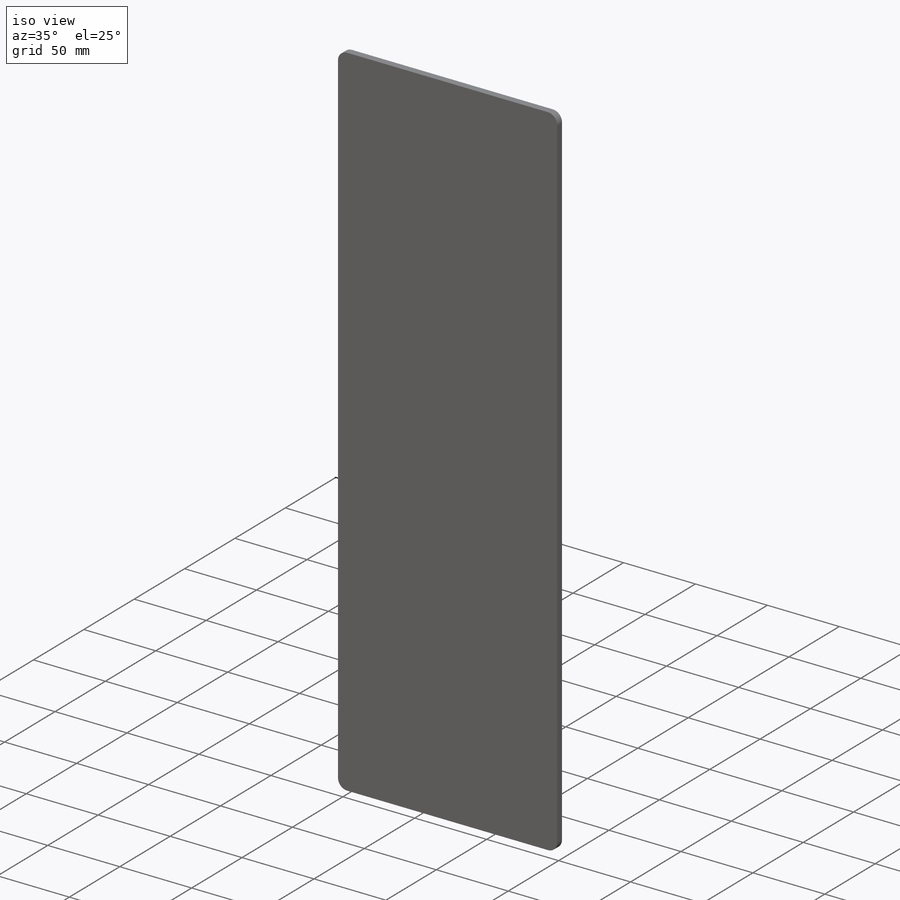
[diagram: iso view]
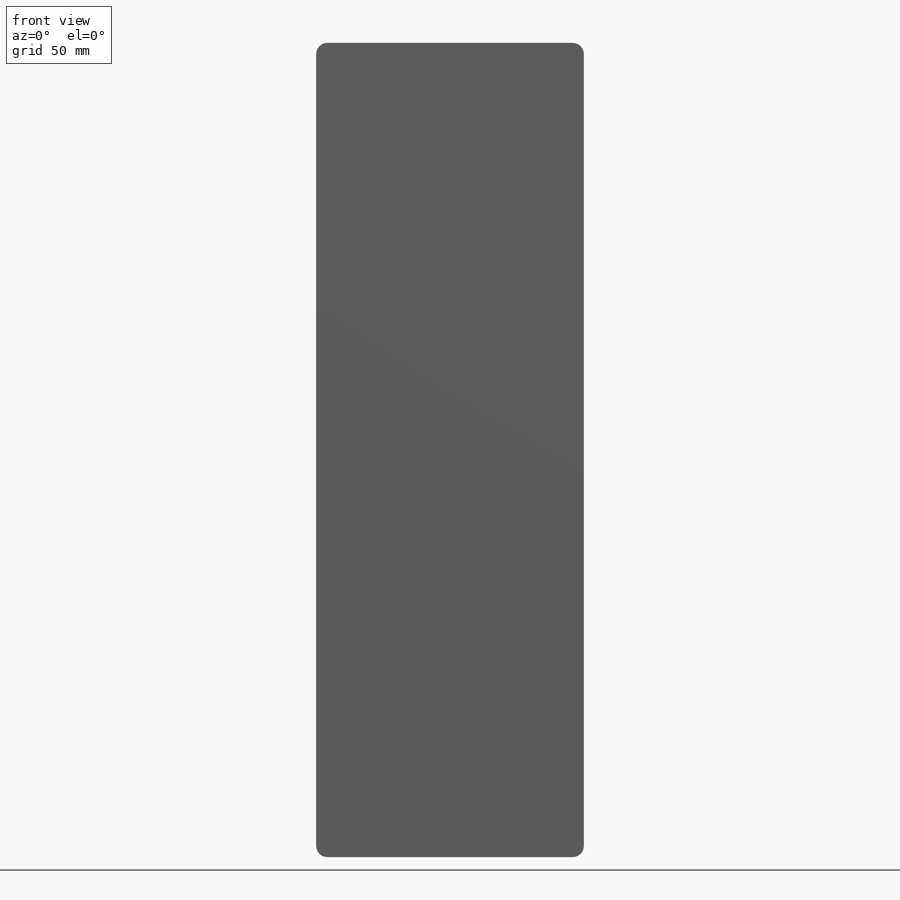
[diagram: front view]
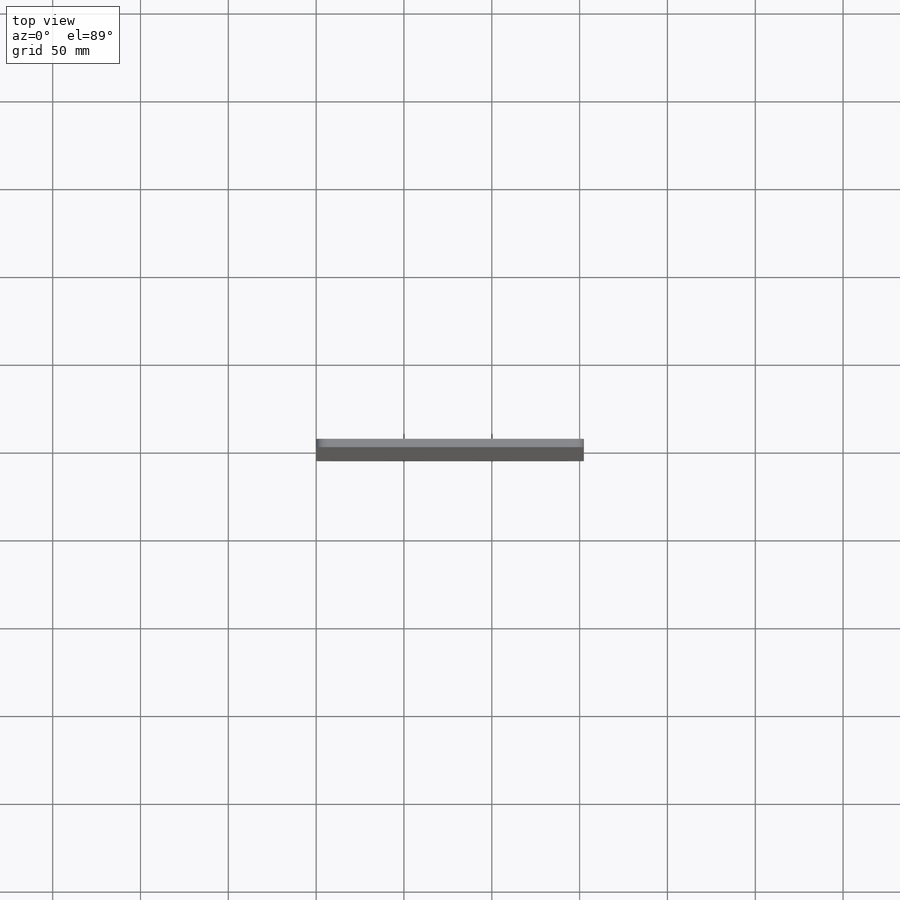
[diagram: top view]
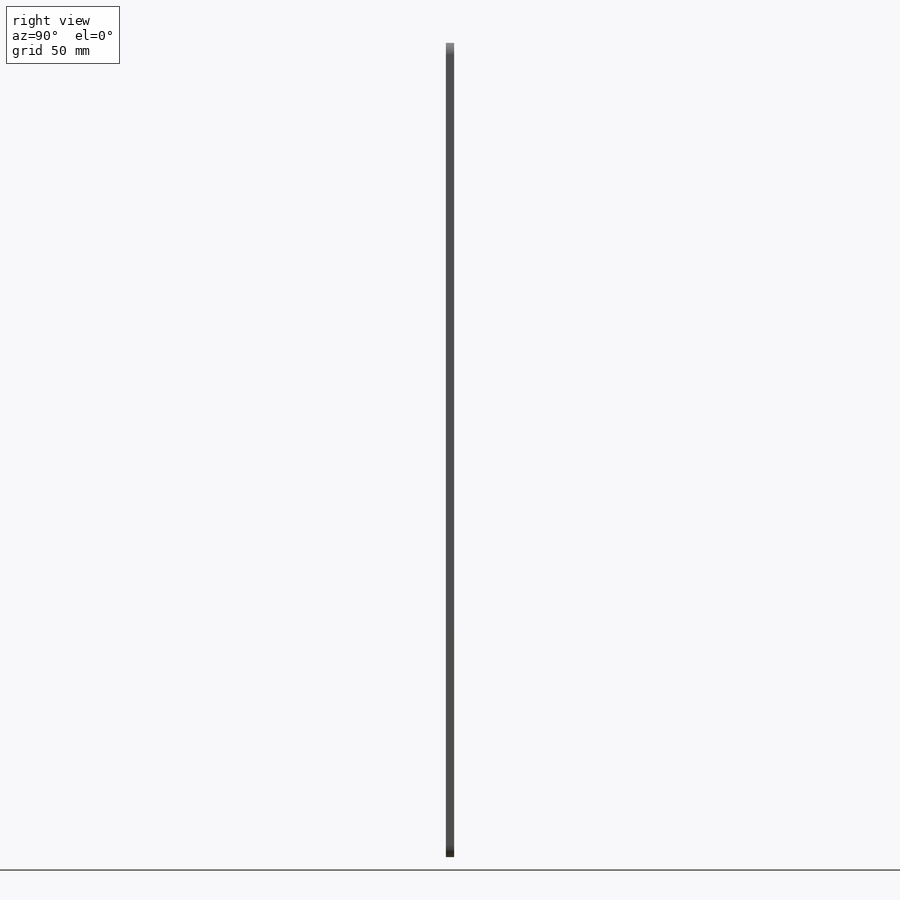
[diagram: right view]
SOLIDWORKS PART (.sldprt)
format: sldprt  version: not decoded by parser v0  size: 124,928 bytes
history: native  units: mm
features: sketch x2, material x1, extrude x1, fillet x1, cut_extrude x1 (+12 scaffold rows collapsed)
feature tree (18):
  scaffold x12  (default folders/planes/origin — collapsed)
  material  "Material <not specified>"
  sketch  "Sketch1"  dims[D1=152.4mm D2=463.55mm D3=101.6mm]
  extrude  "Boss-Extrude1"  Depth=4.7625mm
  fillet  "Fillet1"  Radius=6.35mm
  sketch  "Sketch2"  dims[D1=5.08mm]
  cut_extrude  "Cut-Extrude1"  Depth=7.62mm
decode coverage: 5 of 5 modeling features carry decoded parameters
note: suppression state not decoded; provenance and decode notes live in map.json
